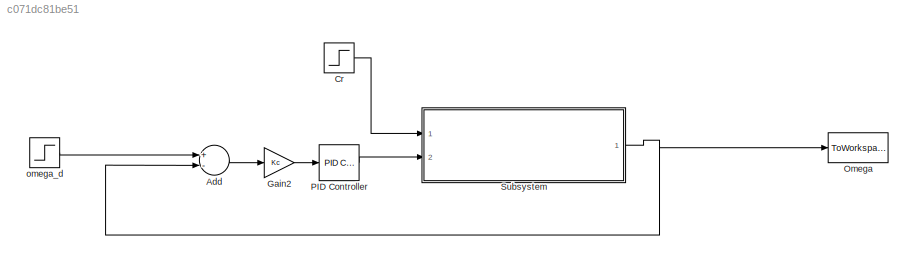
MODEL slx_c071dc81be51
KIND model
CONFIG AbsTol = auto
CONFIG EnableMultiTasking = off
CONFIG FixedStep = auto
CONFIG MaxStep = auto
CONFIG MinStep = auto
CONFIG RelTol = 1e-3
CONFIG SampleTimeConstraint = Unconstrained
CONFIG Solver = VariableStepAuto
CONFIG SolverName = VariableStepAuto
CONFIG StartTime = 0.0
CONFIG StopTime = 10.0
BLOCK [Sum] Add
  InputSameDT = off
  Inputs = +-
  OutDataTypeStr = Inherit: Inherit via internal rule
  Ports = [2, 1]
  SaturateOnIntegerOverflow = off
BLOCK [Step] Cr
  After = Cr
  SampleTime = 0
  Time = 2.5
BLOCK [Gain] Gain2
  Gain = Kc
  OutDataTypeStr = Inherit: Inherit via internal rule
  ParamDataTypeStr = Inherit: Inherit via internal rule
  SaturateOnIntegerOverflow = off
BLOCK [ToWorkspace] Omega
  FixptAsFi = on
  MaxDataPoints = inf
  Ports = [1]
  SampleTime = -1
  Save2DSignal = 3-D array (concatenate along third dimension)
  SaveFormat = Timeseries
  VariableName = omega
BLOCK [Reference] PID Controller  REF=simulink/Continuous/PID Controller
  Ports = [1, 1]
  SourceBlock = simulink/Continuous/PID Controller
  SourceProductBaseCode = SL
  SourceProductName = Simulink
  SourceType = PID 1dof
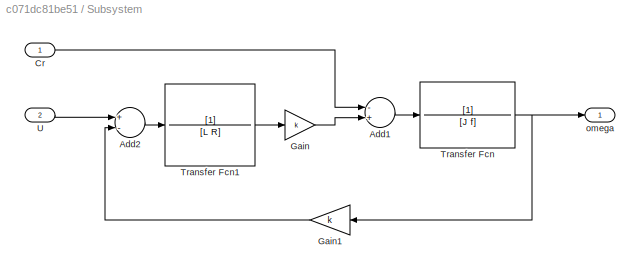
BLOCK [SubSystem] Subsystem
  Ports = [2, 1]
  RequestExecContextInheritance = off
BLOCK [Sum] Subsystem/Add1
  InputSameDT = off
  Inputs = -+
  OutDataTypeStr = Inherit: Inherit via internal rule
  Ports = [2, 1]
  SaturateOnIntegerOverflow = off
BLOCK [Sum] Subsystem/Add2
  InputSameDT = off
  Inputs = +-
  OutDataTypeStr = Inherit: Inherit via internal rule
  Ports = [2, 1]
  SaturateOnIntegerOverflow = off
BLOCK [Inport] Subsystem/Cr
  IconDisplay = Port number
BLOCK [Gain] Subsystem/Gain
  Gain = k
  OutDataTypeStr = Inherit: Inherit via internal rule
  ParamDataTypeStr = Inherit: Inherit via internal rule
  SaturateOnIntegerOverflow = off
BLOCK [Gain] Subsystem/Gain1
  Gain = k
  OutDataTypeStr = Inherit: Inherit via internal rule
  ParamDataTypeStr = Inherit: Inherit via internal rule
  SaturateOnIntegerOverflow = off
BLOCK [TransferFcn] Subsystem/Transfer Fcn
  Denominator = [J f]
BLOCK [TransferFcn] Subsystem/Transfer Fcn1
  Denominator = [L R]
BLOCK [Inport] Subsystem/U
  IconDisplay = Port number
  Port = 2
BLOCK [Outport] Subsystem/omega
  IconDisplay = Port number
BLOCK [Step] omega_d
  After = E
  SampleTime = 0
  Time = 0
LINE Add:1 -> Gain2:1
LINE Cr:1 -> Subsystem:1
LINE Gain2:1 -> PID Controller:1
LINE PID Controller:1 -> Subsystem:2
LINE Subsystem/Add1:1 -> Subsystem/Transfer Fcn:1
LINE Subsystem/Add2:1 -> Subsystem/Transfer Fcn1:1
LINE Subsystem/Cr:1 -> Subsystem/Add1:1
LINE Subsystem/Gain1:1 -> Subsystem/Add2:2
LINE Subsystem/Gain:1 -> Subsystem/Add1:2
LINE Subsystem/Transfer Fcn1:1 -> Subsystem/Gain:1
NET Subsystem/Transfer Fcn:1 -> Subsystem/Gain1:1, Subsystem/omega:1
LINE Subsystem/U:1 -> Subsystem/Add2:1
NET Subsystem:1 -> Add:2, Omega:1
LINE omega_d:1 -> Add:1
note: NET lines group one-source signal fan-out (src -> all destinations, sorted); 1:1 wires keep LINE
